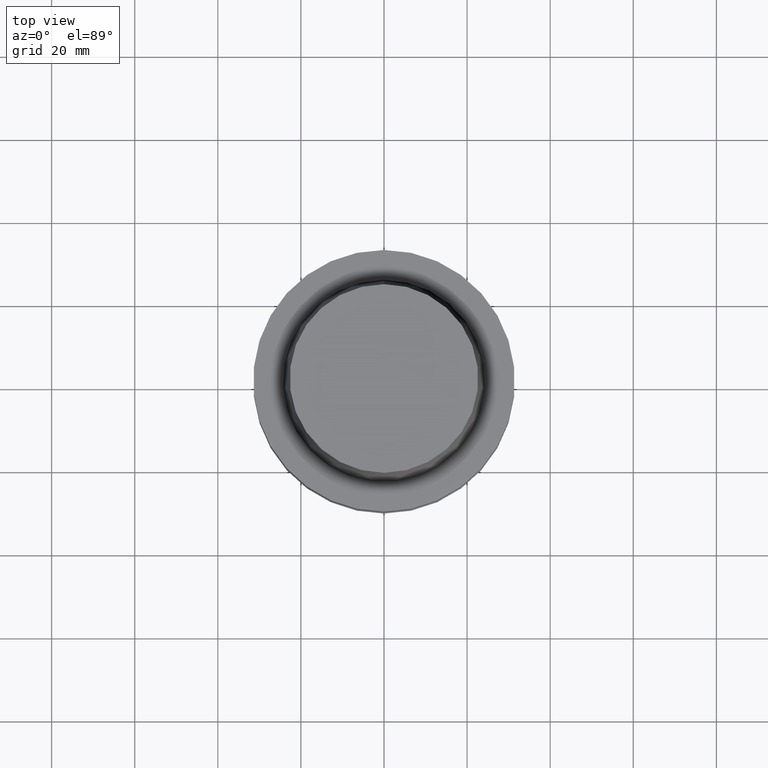
[diagram: clean part render]
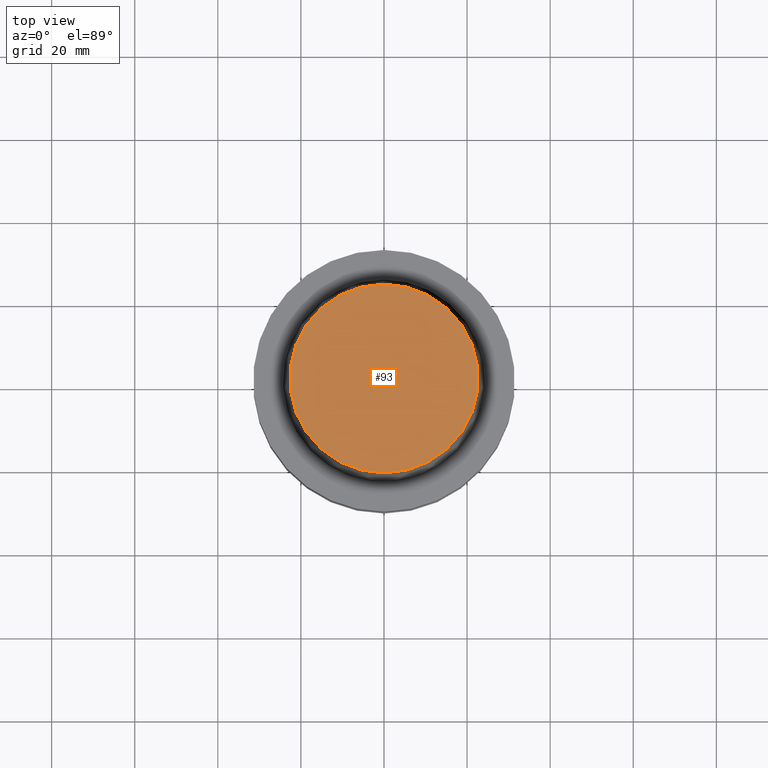
[diagram: same view with one face highlighted and labeled with its STEP entity id]
A machine part, top view. The second image highlights one B-rep face of the part: STEP entity #93.
In plain terms, the highlighted planar face has unit normal (-0, -0, 1).
Its self-contained STEP definition (entity closure, byte-faithful):
#93=ADVANCED_FACE('',(#149),#150,.T.);
#149=FACE_OUTER_BOUND('',#207,.T.);
#150=PLANE('',#208);
#207=EDGE_LOOP('',(#301));
#208=AXIS2_PLACEMENT_3D('',#302,#303,#304);
#301=ORIENTED_EDGE('',*,*,#328,.F.);
#302=CARTESIAN_POINT('',(-1.95943487863577E-015,11.3574999984407,32.0));
#303=DIRECTION('',(-6.12323399573677E-017,-1.22464679914735E-016,1.0));
#304=DIRECTION('',(1.23259516440783E-032,-1.0,-1.22464679914735E-016));
#328=EDGE_CURVE('',#365,#365,#366,.T.);
#365=VERTEX_POINT('',#403);
#366=CIRCLE('',#404,22.7149999968815);
#403=CARTESIAN_POINT('',(-1.95943487863577E-015,22.7149999968815,32.0));
#404=AXIS2_PLACEMENT_3D('',#459,#460,#461);
#459=CARTESIAN_POINT('',(-1.95943487863577E-015,-3.91886975727153E-015,32.0));
#460=DIRECTION('',(6.12323399573677E-017,1.22464679914735E-016,-1.0));
#461=DIRECTION('',(-1.23259516440783E-032,1.0,1.22464679914735E-016));